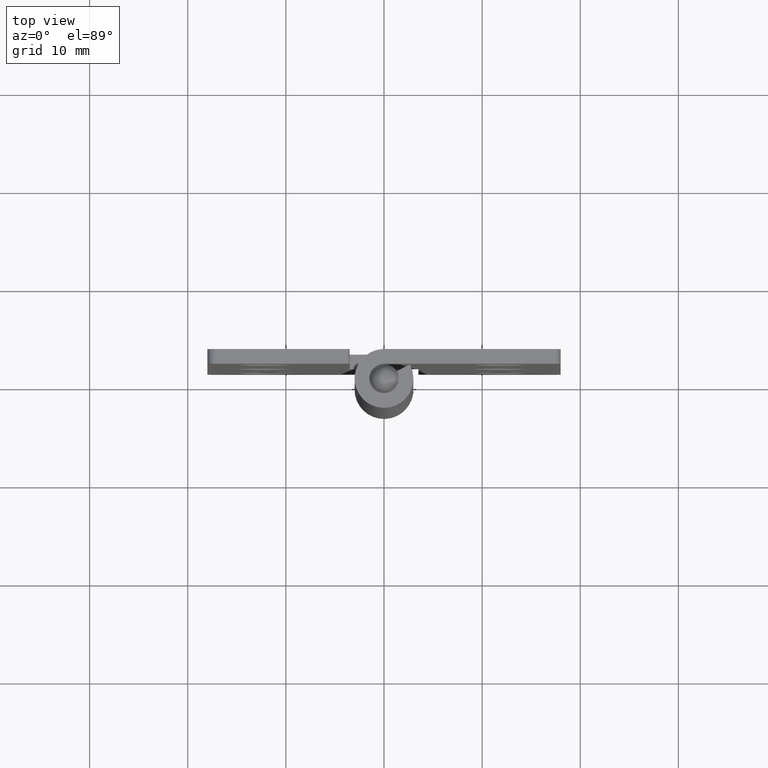
[diagram: clean part render]
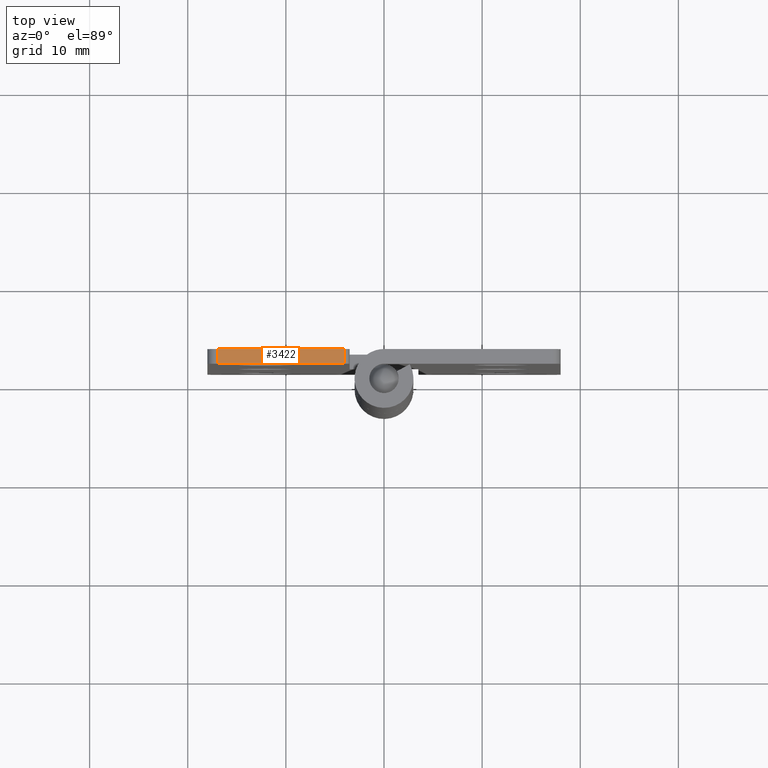
[diagram: same view with one face highlighted and labeled with its STEP entity id]
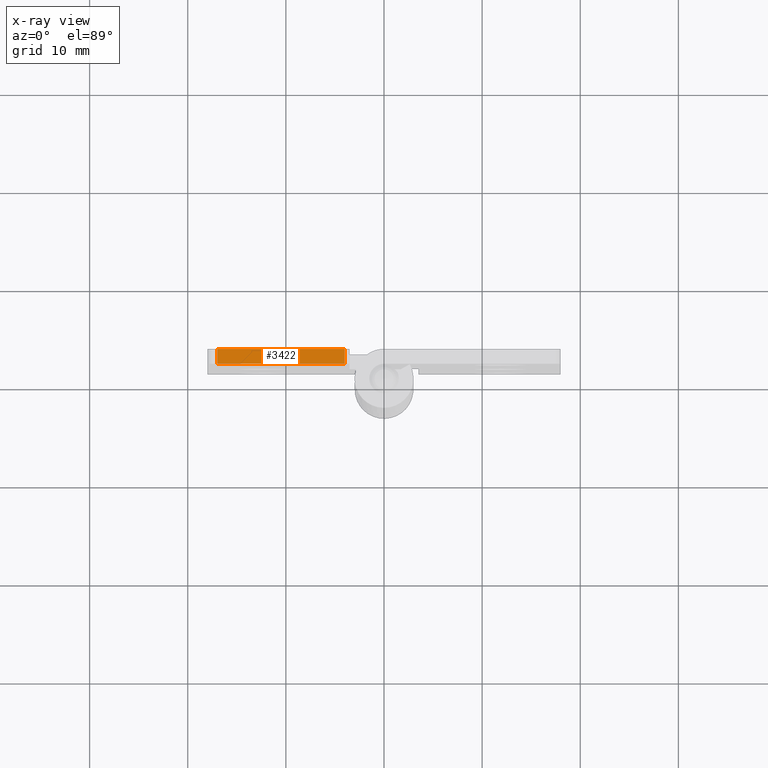
[diagram: x-ray of the same camera — body ghosted, the highlighted face saturated]
A machine part, top view. The second image highlights one B-rep face of the part: STEP entity #3422.
The next image is the same camera in x-ray: the body ghosted, the highlighted face saturated — about 0% of this face is hidden behind the body in this view.
In plain terms, the highlighted face is a freeform B-spline surface patch.
Its self-contained STEP definition (entity closure, byte-faithful):
#2982=CARTESIAN_POINT('',(-4.0,1.500000000000055,65.0));
#2983=VERTEX_POINT('',#2982);
#3004=CARTESIAN_POINT('',(-4.0,3.0,65.0));
#3005=VERTEX_POINT('',#3004);
#3019=CARTESIAN_POINT('',(-4.0,3.0,65.0));
#3020=CARTESIAN_POINT('',(-4.0,1.500000000000055,65.0));
#3021=QUASI_UNIFORM_CURVE('',1,(#3019,#3020),.UNSPECIFIED.,.F.,.U.);
#3022=EDGE_CURVE('',#3005,#2983,#3021,.T.);
#3139=CARTESIAN_POINT('',(-17.0,1.500000000000000,65.0));
#3140=VERTEX_POINT('',#3139);
#3156=CARTESIAN_POINT('',(-17.0,3.0,65.0));
#3157=VERTEX_POINT('',#3156);
#3158=CARTESIAN_POINT('',(-17.0,3.0,65.0));
#3159=CARTESIAN_POINT('',(-17.0,1.500000000000000,65.0));
#3160=QUASI_UNIFORM_CURVE('',1,(#3158,#3159),.UNSPECIFIED.,.F.,.U.);
#3161=EDGE_CURVE('',#3157,#3140,#3160,.T.);
#3403=CARTESIAN_POINT('',(-17.649349974803481,1.425075002907291,65.0));
#3404=CARTESIAN_POINT('',(-3.350649676509351,1.425075002907291,65.0));
#3405=CARTESIAN_POINT('',(-17.649349974803481,3.074925037325845,65.0));
#3406=CARTESIAN_POINT('',(-3.350649676509351,3.074925037325845,65.0));
#3407=B_SPLINE_SURFACE_WITH_KNOTS('',1,1,((#3403,#3405),(#3404,#3406)),.UNSPECIFIED.,.F.,.F.,.U.,(2,2),(2,2),(0.0,14.298700298294129),(0.041708334948495,0.958291687403247),.UNSPECIFIED.);
#3408=CARTESIAN_POINT('',(-4.0,1.500000000000055,65.0));
#3409=CARTESIAN_POINT('',(-17.0,1.500000000000000,65.0));
#3410=QUASI_UNIFORM_CURVE('',1,(#3408,#3409),.UNSPECIFIED.,.F.,.U.);
#3411=EDGE_CURVE('',#2983,#3140,#3410,.T.);
#3412=ORIENTED_EDGE('',*,*,#3411,.F.);
#3413=ORIENTED_EDGE('',*,*,#3022,.F.);
#3414=CARTESIAN_POINT('',(-17.0,3.0,65.0));
#3415=CARTESIAN_POINT('',(-4.0,3.0,65.0));
#3416=QUASI_UNIFORM_CURVE('',1,(#3414,#3415),.UNSPECIFIED.,.F.,.U.);
#3417=EDGE_CURVE('',#3157,#3005,#3416,.T.);
#3418=ORIENTED_EDGE('',*,*,#3417,.F.);
#3419=ORIENTED_EDGE('',*,*,#3161,.T.);
#3420=EDGE_LOOP('',(#3412,#3413,#3418,#3419));
#3421=FACE_OUTER_BOUND('',#3420,.T.);
#3422=ADVANCED_FACE('',(#3421),#3407,.T.);